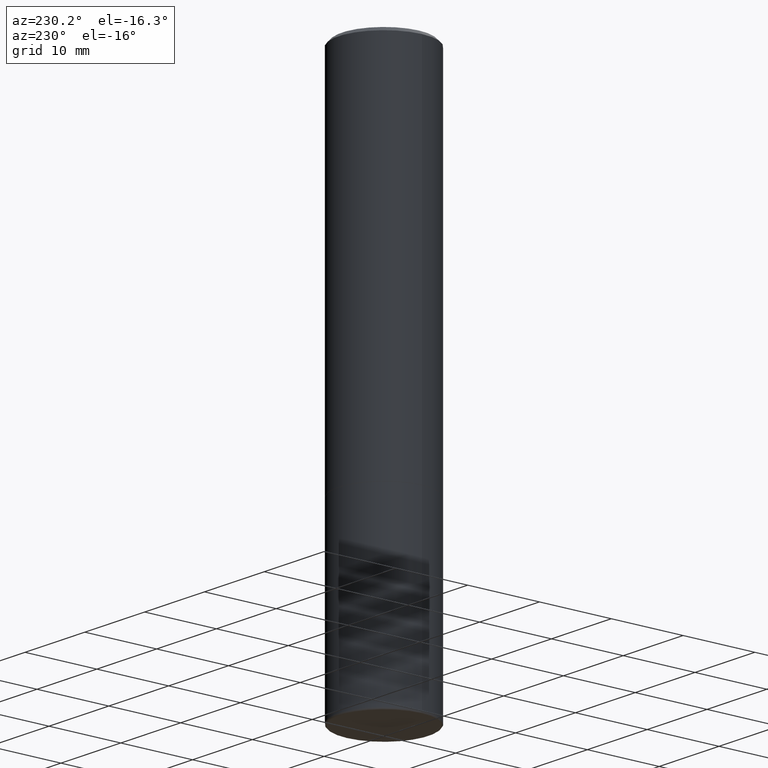
[diagram: clean part render]
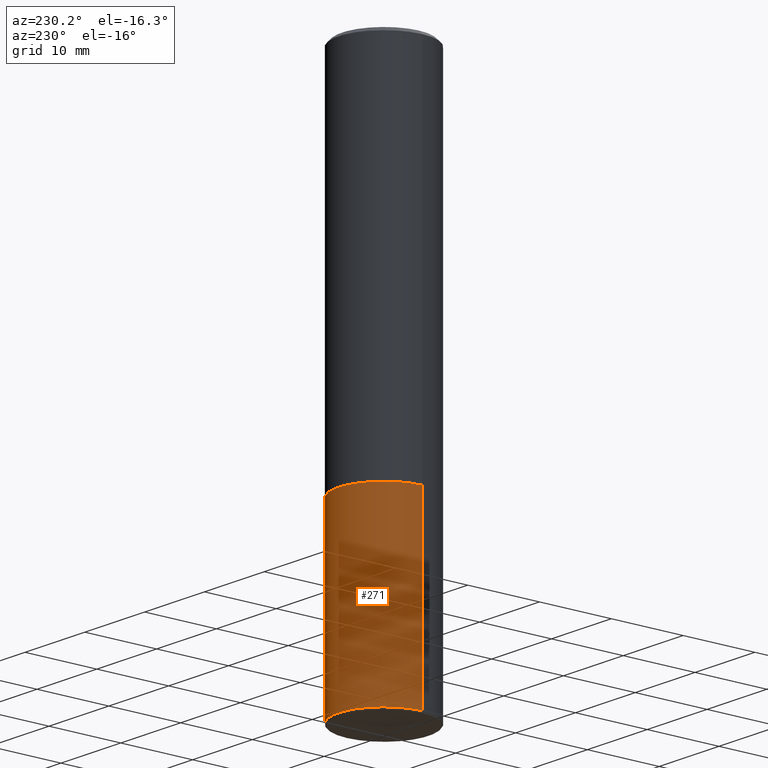
[diagram: same view with one face highlighted and labeled with its STEP entity id]
A machine part, auxiliary view. The second image highlights one B-rep face of the part: STEP entity #271.
In plain terms, the highlighted cylindrical surface (partial cylindrical patch) has radius 6.35 mm, axis along (-0, 0, 1).
Its self-contained STEP definition (entity closure, byte-faithful):
#9 = CARTESIAN_POINT ( 'NONE',  ( -0.2500000000000000000, 1.776356839400250465E-15, -1.229733772563726445E-29 ) ) ;
#37 = CARTESIAN_POINT ( 'NONE',  ( 7.311951730493558245E-29, -1.043952920314100628E-14, -2.990000000000000213 ) ) ;
#49 = ORIENTED_EDGE ( 'NONE', *, *, #381, .T. ) ;
#64 = CARTESIAN_POINT ( 'NONE',  ( 4.890937612370273754E-29, -6.982962677686291954E-15, -2.000000000000000444 ) ) ;
#69 = CARTESIAN_POINT ( 'NONE',  ( -0.2500000000000000000, -6.934889101013398653E-15, -2.000000000000000444 ) ) ;
#76 = AXIS2_PLACEMENT_3D ( 'NONE', #64, #169, #291 ) ;
#112 = DIRECTION ( 'NONE',  ( -2.445468806185136597E-29, 3.491481338843145583E-15, 1.000000000000000000 ) ) ;
#145 = LINE ( 'NONE', #9, #371 ) ;
#169 = DIRECTION ( 'NONE',  ( -2.445468806185136597E-29, 3.491481338843145583E-15, 1.000000000000000000 ) ) ;
#173 = CARTESIAN_POINT ( 'NONE',  ( 0.000000000000000000, 0.000000000000000000, 0.000000000000000000 ) ) ;
#174 = LINE ( 'NONE', #230, #294 ) ;
#175 = EDGE_LOOP ( 'NONE', ( #49, #284, #189, #233 ) ) ;
#179 = DIRECTION ( 'NONE',  ( -2.445468806185136877E-29, 3.491481338843145188E-15, 1.000000000000000000 ) ) ;
#189 = ORIENTED_EDGE ( 'NONE', *, *, #219, .F. ) ;
#208 = DIRECTION ( 'NONE',  ( 1.000000000000000000, -6.982962677686266711E-15, 4.876176775795935793E-29 ) ) ;
#214 = AXIS2_PLACEMENT_3D ( 'NONE', #173, #112, #208 ) ;
#219 = EDGE_CURVE ( 'NONE', #245, #362, #247, .T. ) ;
#222 = AXIS2_PLACEMENT_3D ( 'NONE', #37, #386, #299 ) ;
#230 = CARTESIAN_POINT ( 'NONE',  ( 0.2500000000000000000, -1.745740669421566678E-15, 1.219044193948983948E-29 ) ) ;
#233 = ORIENTED_EDGE ( 'NONE', *, *, #408, .F. ) ;
#239 = CARTESIAN_POINT ( 'NONE',  ( -0.2499999999999998890, -8.663172363740755817E-15, -2.990000000000000213 ) ) ;
#242 = EDGE_CURVE ( 'NONE', #298, #362, #145, .T. ) ;
#245 = VERTEX_POINT ( 'NONE', #269 ) ;
#247 = CIRCLE ( 'NONE', #76, 0.2500000000000000000 ) ;
#260 = CIRCLE ( 'NONE', #222, 0.2500000000000000000 ) ;
#267 = CARTESIAN_POINT ( 'NONE',  ( 0.2499999999999998890, -1.218526987256257138E-14, -2.990000000000000213 ) ) ;
#269 = CARTESIAN_POINT ( 'NONE',  ( 0.2500000000000000000, -8.728703347107858632E-15, -2.000000000000000444 ) ) ;
#271 = ADVANCED_FACE ( 'NONE', ( #387 ), #393, .T. ) ;
#284 = ORIENTED_EDGE ( 'NONE', *, *, #242, .T. ) ;
#291 = DIRECTION ( 'NONE',  ( 1.000000000000000000, -6.982962677686266711E-15, 0.000000000000000000 ) ) ;
#294 = VECTOR ( 'NONE', #390, 39.37007874015748143 ) ;
#298 = VERTEX_POINT ( 'NONE', #239 ) ;
#299 = DIRECTION ( 'NONE',  ( 1.000000000000000000, -6.982962677686262766E-15, 0.000000000000000000 ) ) ;
#362 = VERTEX_POINT ( 'NONE', #69 ) ;
#371 = VECTOR ( 'NONE', #179, 39.37007874015748143 ) ;
#381 = EDGE_CURVE ( 'NONE', #403, #298, #260, .T. ) ;
#386 = DIRECTION ( 'NONE',  ( -2.445468806185136597E-29, 3.491481338843145583E-15, 1.000000000000000000 ) ) ;
#387 = FACE_OUTER_BOUND ( 'NONE', #175, .T. ) ;
#390 = DIRECTION ( 'NONE',  ( -2.445468806185136877E-29, 3.491481338843145188E-15, 1.000000000000000000 ) ) ;
#393 = CYLINDRICAL_SURFACE ( 'NONE', #214, 0.2500000000000000000 ) ;
#403 = VERTEX_POINT ( 'NONE', #267 ) ;
#408 = EDGE_CURVE ( 'NONE', #403, #245, #174, .T. ) ;